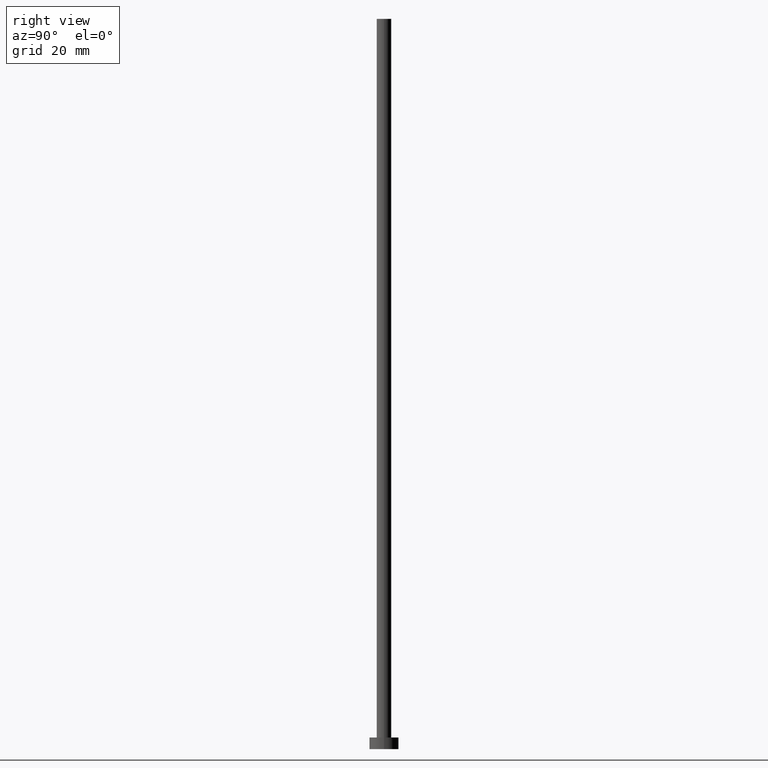
[diagram: clean part render]
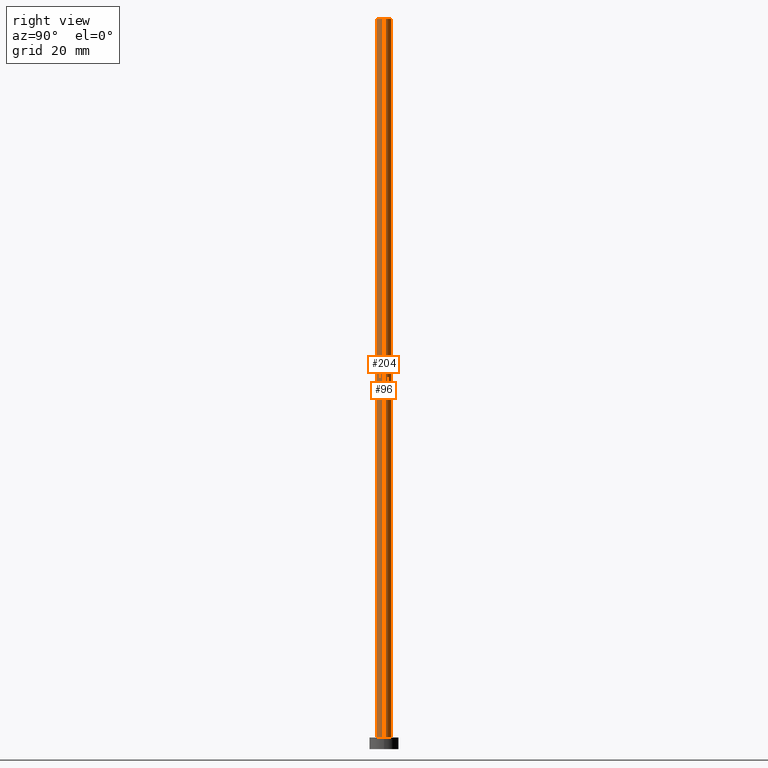
[diagram: same view with one multi-face feature highlighted, each face labeled with its STEP entity id]
A machine part, right view. The highlighted faces form ONE feature: a constant-radius fillet chain: 2 tangent blend faces with common blend radius 1.25 mm. The faces share edges in the B-rep.
Their STEP definitions:
[1] entity #96 (Cylinder):
#9 = EDGE_LOOP ( 'NONE', ( #54, #129, #208, #251 ) ) ;
#11 = LINE ( 'NONE', #73, #241 ) ;
#13 = DIRECTION ( 'NONE',  ( -1.000000000000000000, 0.000000000000000000, 0.000000000000000000 ) ) ;
#15 = CARTESIAN_POINT ( 'NONE',  ( -1.250000000000000000, 0.000000000000000000, 125.0000000000000000 ) ) ;
#21 = VERTEX_POINT ( 'NONE', #199 ) ;
#29 = DIRECTION ( 'NONE',  ( -0.000000000000000000, -0.000000000000000000, -1.000000000000000000 ) ) ;
#40 = VERTEX_POINT ( 'NONE', #178 ) ;
#52 = CIRCLE ( 'NONE', #157, 1.250000000000000000 ) ;
#53 = DIRECTION ( 'NONE',  ( 1.000000000000000000, 0.000000000000000000, 0.000000000000000000 ) ) ;
#54 = ORIENTED_EDGE ( 'NONE', *, *, #191, .F. ) ;
#68 = VECTOR ( 'NONE', #117, 1000.000000000000000 ) ;
#72 = CARTESIAN_POINT ( 'NONE',  ( 0.000000000000000000, 0.000000000000000000, 2.000000000000000000 ) ) ;
#73 = CARTESIAN_POINT ( 'NONE',  ( 1.250000000000000000, 1.530808498934191571E-16, 125.0000000000000000 ) ) ;
#74 = DIRECTION ( 'NONE',  ( 0.000000000000000000, 0.000000000000000000, 1.000000000000000000 ) ) ;
#85 = EDGE_CURVE ( 'NONE', #190, #40, #11, .T. ) ;
#96 = ADVANCED_FACE ( 'NONE', ( #166 ), #146, .T. ) ;
#104 = EDGE_CURVE ( 'NONE', #40, #215, #160, .T. ) ;
#115 = DIRECTION ( 'NONE',  ( 0.000000000000000000, 0.000000000000000000, 1.000000000000000000 ) ) ;
#117 = DIRECTION ( 'NONE',  ( -0.000000000000000000, -0.000000000000000000, -1.000000000000000000 ) ) ;
#129 = ORIENTED_EDGE ( 'NONE', *, *, #85, .T. ) ;
#131 = AXIS2_PLACEMENT_3D ( 'NONE', #72, #74, #53 ) ;
#137 = AXIS2_PLACEMENT_3D ( 'NONE', #240, #218, #13 ) ;
#146 = CYLINDRICAL_SURFACE ( 'NONE', #137, 1.250000000000000000 ) ;
#157 = AXIS2_PLACEMENT_3D ( 'NONE', #185, #115, #248 ) ;
#160 = CIRCLE ( 'NONE', #131, 1.250000000000000000 ) ;
#166 = FACE_OUTER_BOUND ( 'NONE', #9, .T. ) ;
#178 = CARTESIAN_POINT ( 'NONE',  ( 1.250000000000000000, 1.530808498934191571E-16, 2.000000000000000000 ) ) ;
#185 = CARTESIAN_POINT ( 'NONE',  ( 0.000000000000000000, 0.000000000000000000, 125.0000000000000000 ) ) ;
#190 = VERTEX_POINT ( 'NONE', #202 ) ;
#191 = EDGE_CURVE ( 'NONE', #190, #21, #52, .T. ) ;
#199 = CARTESIAN_POINT ( 'NONE',  ( -1.250000000000000000, 0.000000000000000000, 125.0000000000000000 ) ) ;
#202 = CARTESIAN_POINT ( 'NONE',  ( 1.250000000000000000, 1.530808498934191571E-16, 125.0000000000000000 ) ) ;
#205 = LINE ( 'NONE', #15, #68 ) ;
#208 = ORIENTED_EDGE ( 'NONE', *, *, #104, .T. ) ;
#215 = VERTEX_POINT ( 'NONE', #243 ) ;
#218 = DIRECTION ( 'NONE',  ( -0.000000000000000000, -0.000000000000000000, -1.000000000000000000 ) ) ;
#239 = EDGE_CURVE ( 'NONE', #21, #215, #205, .T. ) ;
#240 = CARTESIAN_POINT ( 'NONE',  ( 0.000000000000000000, 0.000000000000000000, 125.0000000000000000 ) ) ;
#241 = VECTOR ( 'NONE', #29, 1000.000000000000000 ) ;
#243 = CARTESIAN_POINT ( 'NONE',  ( -1.250000000000000000, 0.000000000000000000, 2.000000000000000000 ) ) ;
#248 = DIRECTION ( 'NONE',  ( 1.000000000000000000, 0.000000000000000000, 0.000000000000000000 ) ) ;
#251 = ORIENTED_EDGE ( 'NONE', *, *, #239, .F. ) ;
[2] entity #204 (Cylinder):
#11 = LINE ( 'NONE', #73, #241 ) ;
#14 = DIRECTION ( 'NONE',  ( 1.000000000000000000, 0.000000000000000000, 0.000000000000000000 ) ) ;
#15 = CARTESIAN_POINT ( 'NONE',  ( -1.250000000000000000, 0.000000000000000000, 125.0000000000000000 ) ) ;
#16 = CIRCLE ( 'NONE', #48, 1.250000000000000000 ) ;
#19 = FACE_OUTER_BOUND ( 'NONE', #162, .T. ) ;
#21 = VERTEX_POINT ( 'NONE', #199 ) ;
#23 = DIRECTION ( 'NONE',  ( -1.000000000000000000, 0.000000000000000000, 0.000000000000000000 ) ) ;
#29 = DIRECTION ( 'NONE',  ( -0.000000000000000000, -0.000000000000000000, -1.000000000000000000 ) ) ;
#37 = EDGE_CURVE ( 'NONE', #21, #190, #211, .T. ) ;
#40 = VERTEX_POINT ( 'NONE', #178 ) ;
#48 = AXIS2_PLACEMENT_3D ( 'NONE', #207, #133, #203 ) ;
#63 = CYLINDRICAL_SURFACE ( 'NONE', #221, 1.250000000000000000 ) ;
#68 = VECTOR ( 'NONE', #117, 1000.000000000000000 ) ;
#73 = CARTESIAN_POINT ( 'NONE',  ( 1.250000000000000000, 1.530808498934191571E-16, 125.0000000000000000 ) ) ;
#85 = EDGE_CURVE ( 'NONE', #190, #40, #11, .T. ) ;
#106 = AXIS2_PLACEMENT_3D ( 'NONE', #195, #220, #14 ) ;
#117 = DIRECTION ( 'NONE',  ( -0.000000000000000000, -0.000000000000000000, -1.000000000000000000 ) ) ;
#133 = DIRECTION ( 'NONE',  ( 0.000000000000000000, 0.000000000000000000, 1.000000000000000000 ) ) ;
#134 = CARTESIAN_POINT ( 'NONE',  ( 0.000000000000000000, 0.000000000000000000, 125.0000000000000000 ) ) ;
#154 = ORIENTED_EDGE ( 'NONE', *, *, #85, .F. ) ;
#162 = EDGE_LOOP ( 'NONE', ( #154, #231, #186, #164 ) ) ;
#163 = EDGE_CURVE ( 'NONE', #215, #40, #16, .T. ) ;
#164 = ORIENTED_EDGE ( 'NONE', *, *, #163, .T. ) ;
#178 = CARTESIAN_POINT ( 'NONE',  ( 1.250000000000000000, 1.530808498934191571E-16, 2.000000000000000000 ) ) ;
#186 = ORIENTED_EDGE ( 'NONE', *, *, #239, .T. ) ;
#187 = DIRECTION ( 'NONE',  ( -0.000000000000000000, -0.000000000000000000, -1.000000000000000000 ) ) ;
#190 = VERTEX_POINT ( 'NONE', #202 ) ;
#195 = CARTESIAN_POINT ( 'NONE',  ( 0.000000000000000000, 0.000000000000000000, 125.0000000000000000 ) ) ;
#199 = CARTESIAN_POINT ( 'NONE',  ( -1.250000000000000000, 0.000000000000000000, 125.0000000000000000 ) ) ;
#202 = CARTESIAN_POINT ( 'NONE',  ( 1.250000000000000000, 1.530808498934191571E-16, 125.0000000000000000 ) ) ;
#203 = DIRECTION ( 'NONE',  ( 1.000000000000000000, 0.000000000000000000, 0.000000000000000000 ) ) ;
#204 = ADVANCED_FACE ( 'NONE', ( #19 ), #63, .T. ) ;
#205 = LINE ( 'NONE', #15, #68 ) ;
#207 = CARTESIAN_POINT ( 'NONE',  ( 0.000000000000000000, 0.000000000000000000, 2.000000000000000000 ) ) ;
#211 = CIRCLE ( 'NONE', #106, 1.250000000000000000 ) ;
#215 = VERTEX_POINT ( 'NONE', #243 ) ;
#220 = DIRECTION ( 'NONE',  ( 0.000000000000000000, 0.000000000000000000, 1.000000000000000000 ) ) ;
#221 = AXIS2_PLACEMENT_3D ( 'NONE', #134, #187, #23 ) ;
#231 = ORIENTED_EDGE ( 'NONE', *, *, #37, .F. ) ;
#239 = EDGE_CURVE ( 'NONE', #21, #215, #205, .T. ) ;
#241 = VECTOR ( 'NONE', #29, 1000.000000000000000 ) ;
#243 = CARTESIAN_POINT ( 'NONE',  ( -1.250000000000000000, 0.000000000000000000, 2.000000000000000000 ) ) ;